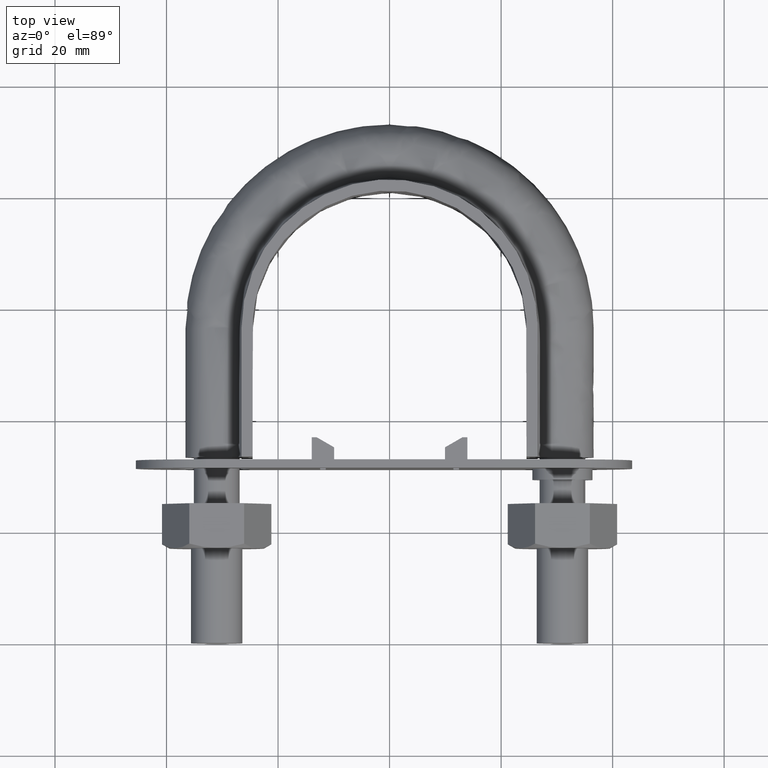
[diagram: clean part render]
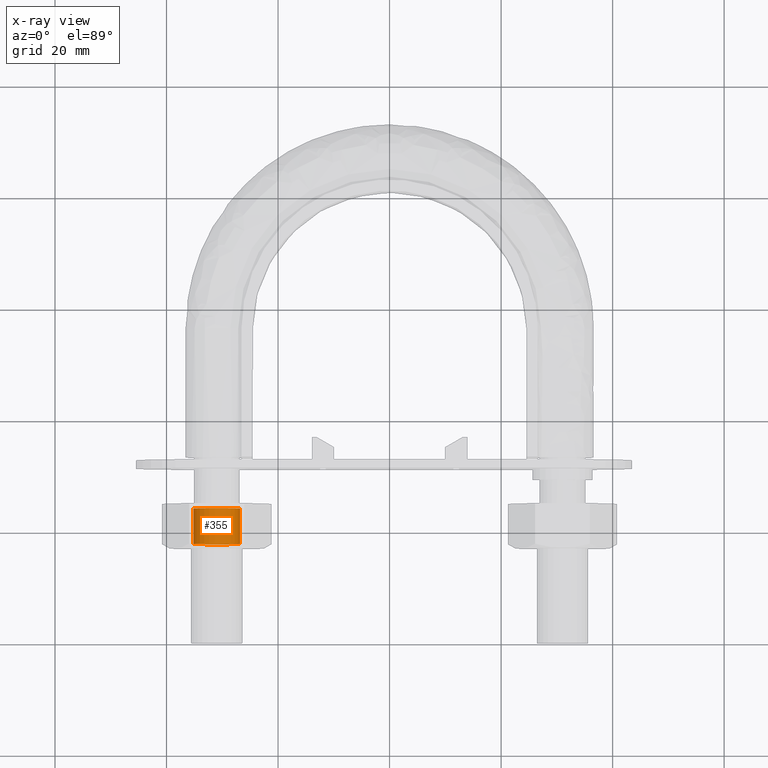
[diagram: x-ray — body ghosted, one internal face saturated and labeled with its STEP entity id]
A machine part, top view, then the same camera in x-ray: the body is ghosted and one INTERNAL B-rep face — a face not visible from any outside direction — is saturated and labeled: STEP entity #355.
In plain terms, the highlighted cylindrical surface (bore or boss wall) has radius 4.188 mm, axis along (-0, -1, -0).
Its self-contained STEP definition (entity closure, byte-faithful):
#355 = ADVANCED_FACE( '', ( #581, #582 ), #583, .F. );
#581 = FACE_OUTER_BOUND( '', #1663, .T. );
#582 = FACE_OUTER_BOUND( '', #1664, .T. );
#583 = CYLINDRICAL_SURFACE( '', #1665, 4.18800000000000 );
#1663 = EDGE_LOOP( '', ( #2362 ) );
#1664 = EDGE_LOOP( '', ( #2363 ) );
#1665 = AXIS2_PLACEMENT_3D( '', #2364, #2365, #2366 );
#2362 = ORIENTED_EDGE( '', *, *, #2732, .T. );
#2363 = ORIENTED_EDGE( '', *, *, #2731, .F. );
#2364 = CARTESIAN_POINT( '', ( -31.0000000000000, 25.0000000000000, 7.85278824388600E-015 ) );
#2365 = DIRECTION( '', ( -2.44921270764476E-016, -1.00000000000000, -3.06151588455594E-016 ) );
#2366 = DIRECTION( '', ( 0.866025403788559, -5.90322481845998E-017, -0.499999999992863 ) );
#2731 = EDGE_CURVE( '', #3093, #3093, #3094, .T. );
#2732 = EDGE_CURVE( '', #3095, #3095, #3096, .T. );
#3093 = VERTEX_POINT( '', #3889 );
#3094 = CIRCLE( '', #3890, 4.18800000000000 );
#3095 = VERTEX_POINT( '', #3891 );
#3096 = CIRCLE( '', #3892, 4.18800000000000 );
#3889 = CARTESIAN_POINT( '', ( -27.3730856089335, 17.8120000000011, -2.09399999997010 ) );
#3890 = AXIS2_PLACEMENT_3D( '', #4329, #4330, #4331 );
#3891 = CARTESIAN_POINT( '', ( -27.3730856089335, 24.1880000000001, -2.09399999997010 ) );
#3892 = AXIS2_PLACEMENT_3D( '', #4332, #4333, #4334 );
#4329 = CARTESIAN_POINT( '', ( -31.0000000000000, 17.8120000000011, 5.65217062606752E-015 ) );
#4330 = DIRECTION( '', ( 2.44921270764476E-016, 1.00000000000000, 3.06151588455594E-016 ) );
#4331 = DIRECTION( '', ( 0.866025403788559, -5.90322481845998E-017, -0.499999999992863 ) );
#4332 = CARTESIAN_POINT( '', ( -31.0000000000000, 24.1880000000001, 7.60419315406009E-015 ) );
#4333 = DIRECTION( '', ( 2.44921270764476E-016, 1.00000000000000, 3.06151588455594E-016 ) );
#4334 = DIRECTION( '', ( 0.866025403788559, -5.90322481845998E-017, -0.499999999992863 ) );